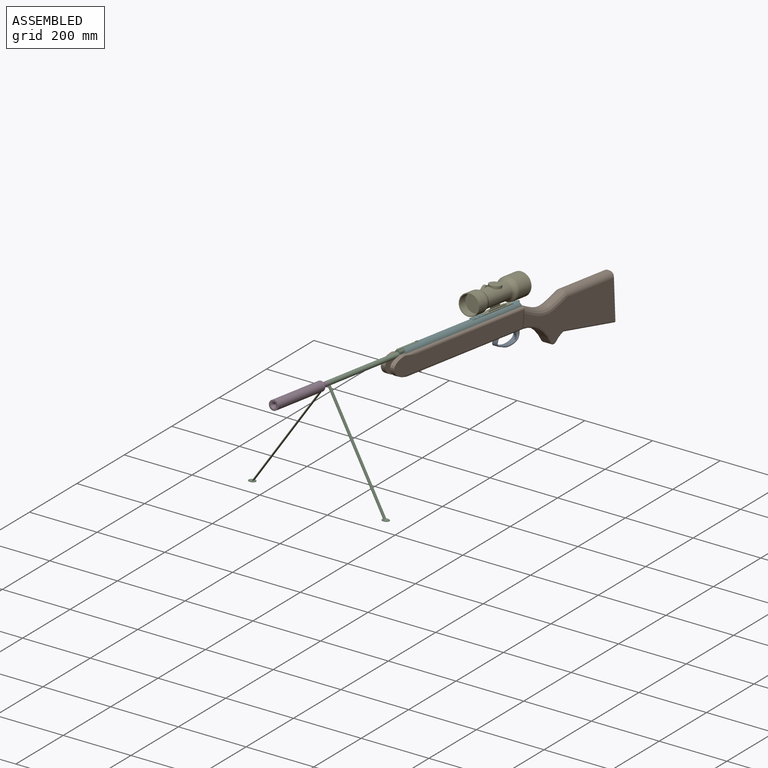
[diagram: assembled view]
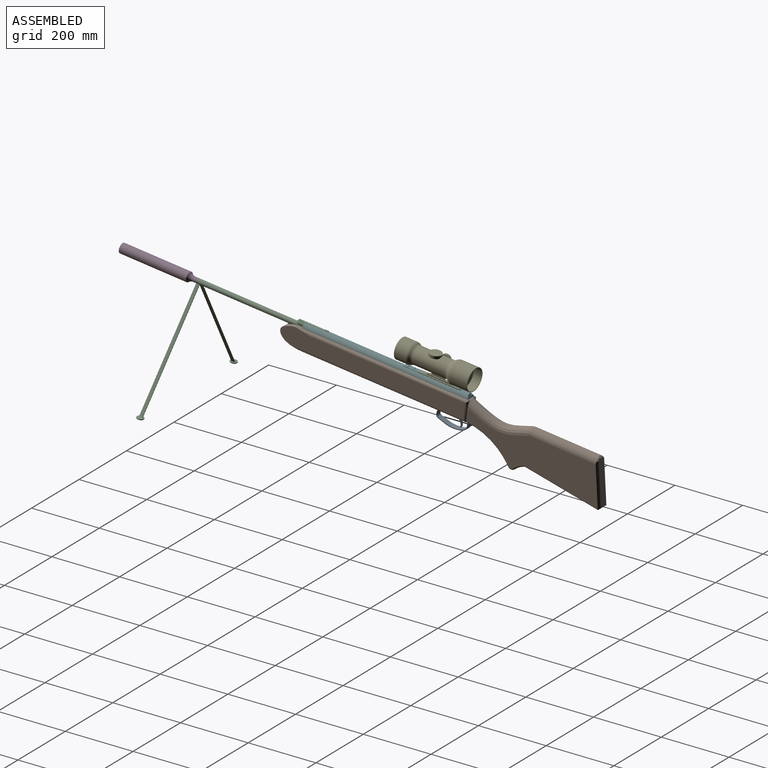
[diagram: assembled view, second angle]
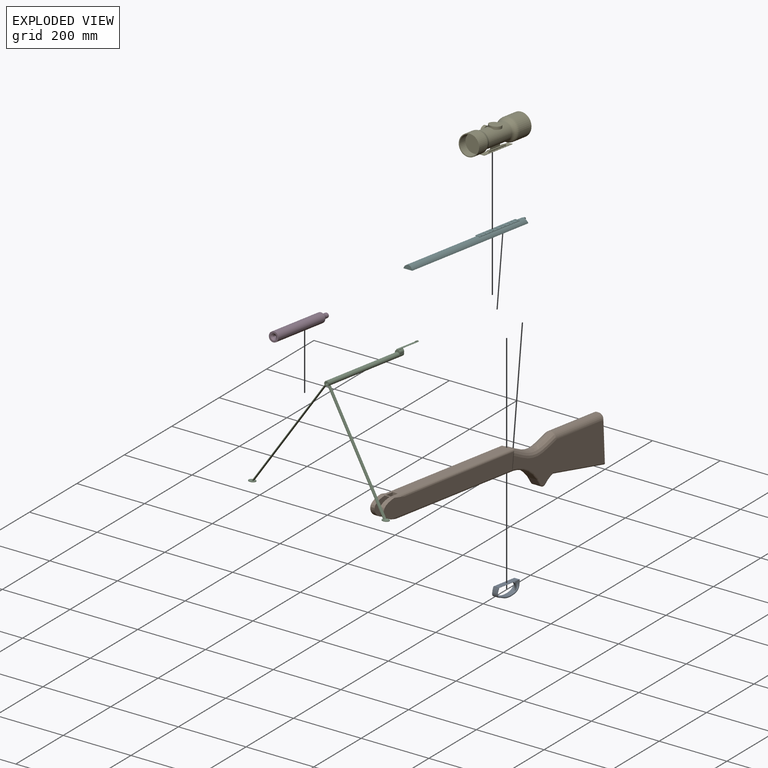
[diagram: exploded view]
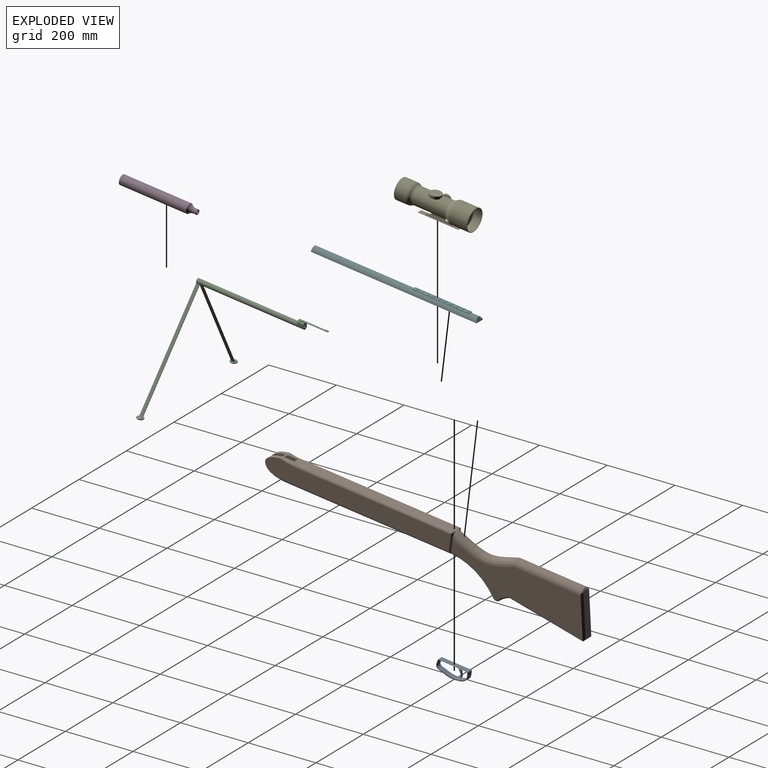
[diagram: exploded view, second angle]
ASSEMBLY  parts=6 mates=5
PART A: 22 faces, bbox 18.5x95x37.6 mm
  f0: plane 94.95x36.71mm, normal (-1,0,0), area 269.3mm2, adj f3,f4,f5,f6,f8,f10,f11
  f1: plane 94.95x36.71mm, normal (1,0,0), area 269.3mm2, adj f3,f4,f5,f6,f13,f15,f16
  f2: plane 82.13x14mm, normal (0,0,-1), area 1138.7mm2, adj f9,f12,f14,f17,f19,f20
  f3: extruded ~92.81x34.76mm, area 2222.7mm2, adj f0,f1,f4,f6
  f4: plane 16x1mm, normal (0,1,0), area 16mm2, adj f0,f1,f3,f5
  f5: plane 89.11x16mm, normal (0,0,1), area 1425.7mm2, adj f0,f1,f4,f6,f9,f17
  f6: plane 16x1mm, normal (0,-1,0), area 16mm2, adj f0,f1,f3,f5
  f7: extruded ~88.66x30.74mm, area 1805.1mm2, adj f8,f12,f13,f14
  f8: bspline ~90.76x33.22mm, area 204.7mm2, adj f0,f7,f10,f11
  f9: cylinder r=1mm len=82.13mm, axis (0,1,0), area 129mm2, adj f2,f5,f10,f11,f18
  f10: torus R=2mm, axis (1,0,0), area 3.1mm2, adj f0,f8,f9,f12
  f11: torus R=2mm, axis (1,0,0), area 2.6mm2, adj f0,f8,f9,f14
  f12: cylinder r=1mm len=14mm, axis (-1,0,0), area 20.1mm2, adj f2,f7,f10,f15
  f13: bspline ~90.76x33.22mm, area 204.7mm2, adj f1,f7,f15,f16
  f14: cylinder r=1mm len=14mm, axis (-1,0,0), area 16.8mm2, adj f2,f7,f11,f16
  f15: torus R=2mm, axis (1,0,0), area 3.1mm2, adj f1,f12,f13,f17
  f16: torus R=2mm, axis (1,0,0), area 2.6mm2, adj f1,f13,f14,f17
  f17: cylinder r=1mm len=82.13mm, axis (0,-1,0), area 129mm2, adj f2,f5,f15,f16
  f18: plane 7.41x3.5mm, normal (0,0,1), area 25.9mm2, adj f9,f19,f21
  f19: extruded ~22.21x11.03mm, area 248.6mm2, adj f2,f18,f20,f21
  f20: plane 22.49x11.46mm, normal (1,0,0), area 86mm2, adj f2,f19
  f21: plane 22.49x11.46mm, normal (-1,0,0), area 86mm2, adj f18,f19
PART B: 64 faces, bbox 45.2x968.6x148.4 mm
  f0: plane 479.88x26mm, normal (0,0,-1), area 7351.9mm2, adj f2,f47,f48,f49,f52,f55,f57
  f1: plane 515.2x31.2mm, normal (0,0,1), area 12719.7mm2, adj f2,f33,f34,f35,f36,f48,f49,f50
  f2: extruded ~87.26x60.21mm, area 3563.4mm2, adj f0,f1,f5,f6,f48,f49,f51,f54
  f3: plane 1.33x0.18mm, normal (0,1,0), area 0.1mm2, adj f29,f46,f47,f57
  f4: plane 1.32x0.18mm, normal (0,1,0), area 0.1mm2, adj f25,f45,f47,f55
  f5: plane 549.65x55.29mm, normal (1,0,0), area 25156.5mm2, adj f2,f15,f56,f57
  f6: plane 549.65x55.29mm, normal (-1,0,0), area 25156.5mm2, adj f2,f16,f54,f55
  f7: plane 1.27x1.01mm, normal (0,1,0), area 0.6mm2, adj f32,f36,f38
  f8: plane 1.27x1.01mm, normal (0,1,0), area 0.6mm2, adj f30,f35,f37
  f9: cylinder r=174.95mm len=132.48mm, axis (-1,0,0), area 3863.5mm2, adj f17,f25,f29,f47
  f10: cylinder r=70.7mm len=29.31mm, axis (-1,0,0), area 886.7mm2, adj f11,f17,f23,f27
  f11: plane 220.95x31.05mm, normal (0,-0.14,-0.99), area 5578mm2, adj f10,f21,f22,f26
  f12: plane 122.66x21.63mm, normal (0,0.98,0.17), area 2584.8mm2, adj f58,f59,f60,f61,f62,f63
  f13: plane 402.07x118.28mm, normal (1,0,0), area 29947.3mm2, adj f19,f26,f27,f28,f29,f31,f32,f42
  f14: plane 402.05x118.26mm, normal (-1,0,0), area 29947.3mm2, adj f20,f22,f23,f24,f25,f30,f31,f41
  f15: cylinder r=13.48mm len=51.77mm, axis (0,0,1), area 306.8mm2, adj f5,f38,f40,f42,f44,f56,f57
  f16: cylinder r=13.48mm len=51.77mm, axis (0,0,1), area 306.8mm2, adj f6,f37,f39,f41,f43,f54,f55
  f17: cylinder r=12mm len=25mm, axis (-1,0,0), area 527.2mm2, adj f9,f10,f24,f28
  f18: plane 16.97x5.84mm, normal (0,0.64,0.77), area 53.1mm2, adj f59,f61,f63
  f19: plane 127.95x26.23mm, normal (0.71,0.7,0.12), area 623mm2, adj f13,f21,f26,f31,f60,f62,f63
  f20: plane 127.95x26.23mm, normal (-0.71,0.7,0.12), area 623mm2, adj f14,f21,f22,f31,f58,f59,f60
  f21: plane 34.23x4.77mm, normal (0,0.72,-0.69), area 172.5mm2, adj f11,f19,f20,f22,f26,f60
  f22: cylinder r=5mm len=224.48mm, axis (0,0.99,-0.14), area 1763.6mm2, adj f11,f14,f20,f21,f23
  f23: torus R=75.7mm, axis (1,0,0), area 290.4mm2, adj f10,f14,f22,f24
  f24: torus R=7mm, axis (1,0,0), area 140.6mm2, adj f14,f17,f23,f25
  f25: torus R=179.95mm, axis (1,0,0), area 1228mm2, adj f4,f9,f14,f24,f43,f47
  f26: cylinder r=5mm len=224.48mm, axis (0,-0.99,0.14), area 1763.6mm2, adj f11,f13,f19,f21,f27
  f27: torus R=75.7mm, axis (1,0,0), area 290.4mm2, adj f10,f13,f26,f28
  f28: torus R=7mm, axis (1,0,0), area 140.6mm2, adj f13,f17,f27,f29
  f29: torus R=179.95mm, axis (1,0,0), area 1228mm2, adj f3,f9,f13,f28,f44,f47
  f30: bspline ~194.92x47mm, area 5194.5mm2, adj f8,f14,f31,f32,f33,f39
  f31: cylinder r=17.5mm len=201.46mm, axis (0,-1,0), area 10942.9mm2, adj f13,f14,f19,f20,f30,f32,f59,f63
  f32: bspline ~197.39x46.49mm, area 5194.6mm2, adj f7,f13,f30,f31,f34,f40
  f33: bspline ~13.21x6.23mm, area 38.8mm2, adj f1,f30,f35
  f34: bspline ~13.7x6.45mm, area 35.4mm2, adj f1,f32,f36
  f35: cylinder r=6mm len=6mm, axis (-1,0,0), area 27.5mm2, adj f1,f8,f33,f37,f54
  f36: cylinder r=6mm len=6mm, axis (-1,0,0), area 27.5mm2, adj f1,f7,f34,f38,f56
  f37: cylinder r=6mm len=5.8mm, axis (0,0,1), area 28.1mm2, adj f8,f16,f35,f39,f54
  f38: cylinder r=6mm len=5.8mm, axis (0,0,1), area 28.1mm2, adj f7,f15,f36,f40,f56
  f39: bspline ~13.78x6.77mm, area 46.5mm2, adj f16,f30,f37,f41
  f40: bspline ~12.39x6.12mm, area 46.5mm2, adj f15,f32,f38,f42
  f41: cylinder r=6mm len=36.18mm, axis (0,0,-1), area 8mm2, adj f14,f16,f39,f43
  f42: cylinder r=6mm len=36.18mm, axis (0,0,-1), area 8mm2, adj f13,f15,f40,f44
  f43: bspline ~5.85x5.04mm, area 9.5mm2, adj f16,f25,f41,f45,f55
  f44: bspline ~5.85x5.04mm, area 9.5mm2, adj f15,f29,f42,f46,f57
  f45: cylinder r=6mm len=0.75mm, axis (0,0,1), area 0mm2, adj f4,f43,f55
  f46: cylinder r=6mm len=0.75mm, axis (0,0,1), area 0mm2, adj f3,f44,f57
  f47: cylinder r=6mm len=26mm, axis (-1,0,0), area 6.3mm2, adj f0,f3,f4,f9,f25,f29,f55,f57
  f48: plane 426.24x60.89mm, normal (-1,0,0), area 12353.5mm2, adj f0,f1,f2,f50,f51,f52,f53
  f49: plane 426.24x60.89mm, normal (1,0,0), area 12353.5mm2, adj f0,f1,f2,f50,f51,f52,f53
  f50: plane 35x14.64mm, normal (0,-1,0), area 512.5mm2, adj f1,f48,f49,f53
  f51: plane 14.64x5.17mm, normal (0,0,-1), area 75.7mm2, adj f2,f48,f49
  f52: plane 25x14.64mm, normal (0,-1,0), area 366.1mm2, adj f0,f48,f49,f53
  f53: plane 349.96x14.64mm, normal (0,0,-1), area 5125mm2, adj f48,f49,f50,f52
  f54: cylinder r=7mm len=508.44mm, axis (0,-1,0), area 5393.4mm2, adj f1,f2,f6,f16,f35,f37
  f55: cylinder r=7mm len=521.58mm, axis (0,1,0), area 5447.1mm2, adj f0,f2,f4,f6,f16,f43,f45,f47
  f56: cylinder r=7mm len=508.44mm, axis (0,1,0), area 5393.4mm2, adj f1,f2,f5,f15,f36,f38
  f57: cylinder r=7mm len=521.58mm, axis (0,-1,0), area 5447.1mm2, adj f0,f2,f3,f5,f15,f44,f46,f47
  f58: cylinder r=5mm len=123.55mm, axis (0,-0.17,0.98), area 482.8mm2, adj f12,f20,f59,f60
  f59: bspline ~17.41x15.77mm, area 88.5mm2, adj f12,f18,f20,f31,f58,f61
  f60: cylinder r=5mm len=29.12mm, axis (1,0,0), area 118.2mm2, adj f12,f19,f20,f21,f58,f62
  f61: cylinder r=5mm len=14.6mm, axis (1,0,0), area 48mm2, adj f12,f18,f59,f63
  f62: cylinder r=5mm len=123.55mm, axis (0,-0.17,0.98), area 482.8mm2, adj f12,f19,f60,f63
  f63: bspline ~17.41x15.77mm, area 88.5mm2, adj f12,f18,f19,f31,f61,f62
PART C: 58 faces, bbox 414.3x391.7x317.5 mm
  f0: plane 86x4.58mm, normal (0,0,1), area 361.5mm2, adj f26,f27,f28,f30,f33,f35,f37,f39
  f1: plane 19.16x0.26mm, normal (0,0,1), area 0.3mm2, adj f8,f20,f23,f30,f31
  f2: cylinder r=3mm len=320mm, axis (0,-1,0), area 6031.9mm2, adj f14,f18
  f3: plane 19.15x0.12mm, normal (0,0,-1), area 2.3mm2, adj f7,f10,f13,f23
  f4: plane 3.06x0.01mm, normal (0,0,-1), area 0mm2, adj f6,f8,f11,f13
  f5: plane 3.06x0.01mm, normal (0,0,-1), area 0mm2, adj f7,f8,f12,f13
  f6: plane 4.5x3.06mm, normal (0,-1,0), area 5.2mm2, adj f4,f9,f13,f15
  f7: plane 4.5x3.06mm, normal (0,-1,0), area 5.2mm2, adj f3,f5,f10,f13
  f8: plane 14x7.5mm, normal (0,-1,0), area 77mm2, adj f1,f4,f5,f11,f12,f13,f20,f21
  f9: plane 19.15x4.5mm, normal (1,0,0), area 86.2mm2, adj f6,f11,f15,f23
  f10: plane 19.15x4.5mm, normal (-1,0,0), area 86.2mm2, adj f3,f7,f12,f23
  f11: cylinder r=7.56mm len=19.16mm, axis (0,-1,0), area 149.9mm2, adj f4,f8,f9,f21,f23
  f12: cylinder r=7.56mm len=19.16mm, axis (0,-1,0), area 149.9mm2, adj f5,f8,f10,f20,f23
  f13: cylinder r=7mm len=320mm, axis (0,1,0), area 13666mm2, adj f3,f4,f5,f6,f7,f8,f14,f15
  f14: plane 394.25x306.95mm, normal (0,-1,0), area 1521.9mm2, adj f2,f13,f40,f41,f43,f44,f48,f49
  f15: plane 19.15x0.12mm, normal (0,0,-1), area 2.3mm2, adj f6,f9,f13,f23
  f16: plane 2.05x0.85mm, normal (0,0,1), area 1.7mm2, adj f13,f18,f19,f23
  f17: plane 2.05x0.85mm, normal (0,0,1), area 1.7mm2, adj f13,f18,f19,f23
  f18: plane 14x12mm, normal (0,1,0), area 93.1mm2, adj f2,f13,f16,f17,f19
  f19: cylinder r=5mm len=9.66mm, axis (0,1,0), area 11.1mm2, adj f16,f17,f18,f23
  f20: plane 19.16x1mm, normal (-1,0,0), area 19.2mm2, adj f1,f8,f12,f23
  f21: plane 19.16x1mm, normal (1,0,0), area 19.2mm2, adj f8,f11,f22,f23
  f22: plane 19.16x0.26mm, normal (0,0,1), area 0.3mm2, adj f8,f21,f23,f28,f29
  f23: plane 14x12mm, normal (0,1,0), area 120mm2, adj f1,f3,f9,f10,f11,f12,f15,f16
  f24: plane 67.5x6.58mm, normal (0,0,-1), area 444.1mm2, adj f23,f26,f28,f30
  f25: plane 6.08x0.34mm, normal (0,0,-1), area 1.9mm2, adj f8,f27,f29,f31
  f26: plane 6.58x2.3mm, normal (0,1,0), area 9.5mm2, adj f0,f24,f28,f30,f32,f33,f34,f36
  f27: cylinder r=1mm len=4.58mm, axis (1,0,0), area 7.2mm2, adj f0,f25,f29,f31
  f28: cylinder r=1mm len=86mm, axis (0,-1,0), area 135.1mm2, adj f0,f22,f24,f26,f29,f32
  f29: sphere r=1mm, area 1.6mm2, adj f22,f25,f27,f28
  f30: cylinder r=1mm len=86mm, axis (0,1,0), area 135.1mm2, adj f0,f1,f24,f26,f31,f38
  f31: sphere r=1mm, area 1.6mm2, adj f1,f25,f27,f30
  f32: plane 10x1.3mm, normal (0.91,0,0.42), area 14.3mm2, adj f26,f28,f34,f35
  f33: plane 10x1.3mm, normal (-1,0,0), area 13mm2, adj f0,f26,f34,f35
  f34: plane 10x1.01mm, normal (0,0,1), area 10.1mm2, adj f26,f32,f33,f35
  f35: plane 1.61x1.3mm, normal (0,-1,0), area 1.7mm2, adj f0,f32,f33,f34
  f36: plane 10x1.01mm, normal (0,0,1), area 10.1mm2, adj f26,f37,f38,f39
  f37: plane 10x1.3mm, normal (1,0,0), area 13mm2, adj f0,f26,f36,f39
  f38: plane 10x1.3mm, normal (-0.91,0,0.42), area 14.3mm2, adj f26,f30,f36,f39
  f39: plane 1.61x1.3mm, normal (0,-1,0), area 1.7mm2, adj f0,f36,f37,f38
  f40: plane 10x2.79mm, normal (-0.23,0,0.97), area 28.6mm2, adj f14,f42,f48,f53
  f41: plane 294.3x189.44mm, normal (0.84,0,-0.54), area 3500mm2, adj f13,f14,f42,f48
  f42: plane 295.49x192.99mm, normal (0,1,0), area 698.1mm2, adj f13,f40,f41,f48,f52,f53,f54
  f43: plane 294.3x189.44mm, normal (-0.84,0,-0.54), area 3500mm2, adj f13,f14,f45,f49
  f44: plane 10x2.79mm, normal (0.23,0,0.97), area 28.6mm2, adj f14,f45,f49,f55
  f45: plane 295.49x192.99mm, normal (0,1,0), area 698.1mm2, adj f13,f43,f44,f49,f55,f56,f57
  f46: cylinder r=10mm len=20mm, axis (0,0,1), area 125.7mm2, adj f47,f48
  f47: plane 20x20mm, normal (0,0,-1), area 314.2mm2, adj f46
  f48: plane 20x20mm, normal (0,0,1), area 278.7mm2, adj f14,f40,f41,f42,f46
  f49: plane 20x20mm, normal (0,0,1), area 278.7mm2, adj f14,f43,f44,f45,f50
  f50: cylinder r=10mm len=20mm, axis (0,0,1), area 125.7mm2, adj f49,f51
  f51: plane 20x20mm, normal (0,0,-1), area 314.2mm2, adj f50
  f52: plane 10x0.84mm, normal (0.54,0,0.84), area 10mm2, adj f13,f14,f42,f54
  f53: plane 10x0.84mm, normal (-0.54,0,-0.84), area 10mm2, adj f14,f40,f42,f54
  f54: plane 294.3x189.44mm, normal (-0.84,0,0.54), area 3500mm2, adj f14,f42,f52,f53
  f55: plane 10x0.84mm, normal (0.54,0,-0.84), area 10mm2, adj f14,f44,f45,f57
  f56: plane 10x0.84mm, normal (-0.54,0,0.84), area 10mm2, adj f13,f14,f45,f57
  f57: plane 294.3x189.44mm, normal (0.84,0,0.54), area 3500mm2, adj f14,f45,f55,f56
PART D: 7 faces, bbox 58.4x229.4x58.4 mm
  f0: cylinder r=7mm len=14mm, axis (0,1,0), area 431.1mm2, adj f1,f3
  f1: plane 14x14mm, normal (0,1,0), area 103.7mm2, adj f0,f4
  f2: cylinder r=14mm len=200mm, axis (0,1,0), area 17592.9mm2, adj f3,f5
  f3: torus R=27mm, axis (0,-1,0), area 1018.9mm2, adj f0,f2
  f4: cylinder r=4mm len=220mm, axis (0,-1,0), area 5529.2mm2, adj f1,f6
  f5: plane 28x28mm, normal (0,-1,0), area 361.3mm2, adj f2,f6
  f6: cone r=4mm half-angle=45deg, axis (0,-1,0), area 288.8mm2, adj f4,f5
PART E: 43 faces, bbox 70.4x219x74.8 mm
  f0: cylinder r=25mm len=95.83mm, axis (0,-1,0), area 14220.9mm2, adj f1,f4,f6,f7,f25,f29,f31,f39
  f1: cylinder r=3.88mm len=7.76mm, axis (-1,0,0), area 54.2mm2, adj f0,f37
  f2: plane 13.82x0.66mm, normal (0,0,1), area 9.2mm2, adj f6,f7,f23,f31
  f3: cylinder r=32.5mm len=65mm, axis (0,1,0), area 10648.7mm2, adj f5,f26
  f4: torus R=40mm, axis (0,-1,0), area 1789.6mm2, adj f0,f5
  f5: torus R=17.5mm, axis (0,1,0), area 2127.1mm2, adj f3,f4
  f6: plane 80x10.52mm, normal (1,0,0), area 445.6mm2, adj f0,f2,f8,f9,f10,f20,f21,f22
  f7: plane 80x10.52mm, normal (-1,0,0), area 445.6mm2, adj f0,f2,f8,f9,f17,f20,f21,f22
  f8: cylinder r=9.6mm len=7mm, axis (-1,0,0), area 51.4mm2, adj f6,f7,f10,f11,f17,f18,f19,f20
  f9: cylinder r=9.6mm len=7mm, axis (-1,0,0), area 51.4mm2, adj f6,f7,f10,f11,f17,f18,f19,f22
  f10: plane 70x3.17mm, normal (0,0,1), area 221.7mm2, adj f6,f8,f9,f18
  f11: plane 120x14mm, normal (0,0,1), area 1102.2mm2, adj f8,f9,f12,f14,f15,f16,f18,f19
  f12: plane 14x1mm, normal (0,-1,0), area 14mm2, adj f11,f13,f15,f16
  f13: plane 120x14mm, normal (0,0,-1), area 1680mm2, adj f12,f14,f15,f16
  f14: plane 14x1mm, normal (0,1,0), area 14mm2, adj f11,f13,f15,f16
  f15: plane 120x1mm, normal (1,0,0), area 120mm2, adj f11,f12,f13,f14
  f16: plane 120x1mm, normal (-1,0,0), area 120mm2, adj f11,f12,f13,f14
  f17: plane 70x3.17mm, normal (0,0,1), area 221.7mm2, adj f7,f8,f9,f19
  f18: plane 82.55x3.58mm, normal (1,0,0), area 265.8mm2, adj f8,f9,f10,f11
  f19: plane 82.55x3.58mm, normal (-1,0,0), area 265.8mm2, adj f8,f9,f11,f17
  f20: plane 4.56x0.66mm, normal (0,0,-1), area 3mm2, adj f6,f7,f8,f24
  f21: plane 24.08x0.66mm, normal (0,0,1), area 16mm2, adj f6,f7,f24,f25
  f22: plane 4.56x0.66mm, normal (0,0,-1), area 3mm2, adj f6,f7,f9,f23
  f23: plane 1.03x0.66mm, normal (0,1,0), area 0.7mm2, adj f2,f6,f7,f22
  f24: plane 1.03x0.66mm, normal (0,-1,0), area 0.7mm2, adj f6,f7,f20,f21
  f25: plane 9.49x0.66mm, normal (0,-1,0), area 6.3mm2, adj f0,f6,f7,f21
  f26: plane 65x65mm, normal (0,-1,0), area 299.2mm2, adj f3,f34
  f27: cylinder r=30mm len=60mm, axis (0,-1,0), area 6521.4mm2, adj f28,f30
  f28: plane 60x60mm, normal (0,1,0), area 451.6mm2, adj f27,f32
  f29: torus R=40mm, axis (0,1,0), area 1426.5mm2, adj f0,f30
  f30: torus R=15mm, axis (0,-1,0), area 1609.5mm2, adj f27,f29
  f31: plane 9.49x0.66mm, normal (0,1,0), area 6.3mm2, adj f0,f2,f6,f7
  f32: cylinder r=27.5mm len=55mm, axis (0,1,0), area 4319.7mm2, adj f28,f33
  f33: plane 55x55mm, normal (0,1,0), area 2375.8mm2, adj f32
  f34: cylinder r=31mm len=62mm, axis (0,-1,0), area 4869.5mm2, adj f26,f35
  f35: plane 62x62mm, normal (0,-1,0), area 3019.1mm2, adj f34
  f36: cylinder r=14mm len=28mm, axis (1,0,0), area 703.7mm2, adj f37,f38
  f37: plane 28x28mm, normal (-1,0,0), area 568.5mm2, adj f1,f36
  f38: plane 28x28mm, normal (1,0,0), area 615.8mm2, adj f36
  f39: cylinder r=17.5mm len=35mm, axis (0,0,1), area 772.8mm2, adj f0,f40,f41,f42
  f40: plane 31.38x9.75mm, normal (0,0,-1), area 218.9mm2, adj f0,f39
  f41: plane 14.19x1.5mm, normal (0,0,-1), area 14.3mm2, adj f0,f39
  f42: plane 35x35mm, normal (0,0,1), area 962.1mm2, adj f39
PART F: 73 faces, bbox 26x497.7x14 mm
  f0: cylinder r=16.5mm len=24.53mm, axis (-1,0,0), area 176.3mm2, adj f3,f5,f7,f8,f68,f69,f71,f72
  f1: plane 170x14mm, normal (0,0,1), area 2020mm2, adj f9,f10,f12,f14,f17,f18,f19,f20
  f2: plane 25x4mm, normal (0,0,1), area 100mm2, adj f3,f5,f7,f9
  f3: cylinder r=16.05mm len=493mm, axis (0,1,0), area 7782.5mm2, adj f0,f2,f4,f6,f7,f8,f9,f10
  f4: plane 493x26mm, normal (0,0,-1), area 12818mm2, adj f3,f5,f8,f67
  f5: cylinder r=16.05mm len=493mm, axis (0,1,0), area 7782.5mm2, adj f0,f2,f4,f6,f7,f8,f9,f10
  f6: plane 295x4mm, normal (0,0,1), area 1180mm2, adj f3,f5,f10,f67
  f7: plane 4.32x0.05mm, normal (0,1,0), area 0.2mm2, adj f0,f2,f3,f5
  f8: plane 26x2.46mm, normal (0,1,0), area 62.4mm2, adj f0,f3,f4,f5
  f9: plane 14x2.4mm, normal (0,1,0), area 18.6mm2, adj f1,f2,f3,f5,f11,f12,f13,f14
  f10: plane 14x2.4mm, normal (0,-1,0), area 18.6mm2, adj f1,f3,f5,f6,f11,f12,f13,f14
  f11: plane 170x1.39mm, normal (0,0,-1), area 236mm2, adj f9,f10,f12,f16
  f12: plane 170x1mm, normal (-1,0,0), area 170mm2, adj f1,f9,f10,f11
  f13: plane 170x1.39mm, normal (0,0,-1), area 236mm2, adj f9,f10,f14,f15
  f14: plane 170x1mm, normal (1,0,0), area 170mm2, adj f1,f9,f10,f13
  f15: plane 170x1.4mm, normal (0.97,0,-0.26), area 245.9mm2, adj f5,f9,f10,f13
  f16: plane 170x1.4mm, normal (-0.97,0,-0.26), area 245.9mm2, adj f3,f9,f10,f11
  f17: plane 9x1mm, normal (0,-1,0), area 9mm2, adj f1,f18,f20,f21
  f18: plane 3x1mm, normal (1,0,0), area 3mm2, adj f1,f17,f19,f21
  f19: plane 9x1mm, normal (0,1,0), area 9mm2, adj f1,f18,f20,f21
  f20: plane 3x1mm, normal (-1,0,0), area 3mm2, adj f1,f17,f19,f21
  f21: plane 9x3mm, normal (0,0,1), area 27mm2, adj f17,f18,f19,f20
  f22: plane 9x1mm, normal (0,-1,0), area 9mm2, adj f1,f23,f25,f26
  f23: plane 3x1mm, normal (1,0,0), area 3mm2, adj f1,f22,f24,f26
  f24: plane 9x1mm, normal (0,1,0), area 9mm2, adj f1,f23,f25,f26
  f25: plane 3x1mm, normal (-1,0,0), area 3mm2, adj f1,f22,f24,f26
  f26: plane 9x3mm, normal (0,0,1), area 27mm2, adj f22,f23,f24,f25
  f27: plane 9x1mm, normal (0,-1,0), area 9mm2, adj f1,f28,f30,f31
  f28: plane 3x1mm, normal (1,0,0), area 3mm2, adj f1,f27,f29,f31
  f29: plane 9x1mm, normal (0,1,0), area 9mm2, adj f1,f28,f30,f31
  f30: plane 3x1mm, normal (-1,0,0), area 3mm2, adj f1,f27,f29,f31
  f31: plane 9x3mm, normal (0,0,1), area 27mm2, adj f27,f28,f29,f30
  f32: plane 8x1mm, normal (1,0,0), area 8mm2, adj f1,f33,f35,f65
  f33: plane 9x1mm, normal (0,1,0), area 9mm2, adj f1,f32,f34,f35
  f34: plane 8x1mm, normal (-1,0,0), area 8mm2, adj f1,f33,f35,f65
  f35: plane 9x8mm, normal (0,0,1), area 72mm2, adj f32,f33,f34,f65
  f36: plane 9x1mm, normal (0,-1,0), area 9mm2, adj f1,f37,f39,f40
  f37: plane 3x1mm, normal (1,0,0), area 3mm2, adj f1,f36,f38,f40
  f38: plane 9x1mm, normal (0,1,0), area 9mm2, adj f1,f37,f39,f40
  f39: plane 3x1mm, normal (-1,0,0), area 3mm2, adj f1,f36,f38,f40
  f40: plane 9x3mm, normal (0,0,1), area 27mm2, adj f36,f37,f38,f39
  f41: plane 9x1mm, normal (0,-1,0), area 9mm2, adj f1,f42,f44,f45
  f42: plane 3x1mm, normal (1,0,0), area 3mm2, adj f1,f41,f43,f45
  f43: plane 9x1mm, normal (0,1,0), area 9mm2, adj f1,f42,f44,f45
  f44: plane 3x1mm, normal (-1,0,0), area 3mm2, adj f1,f41,f43,f45
  f45: plane 9x3mm, normal (0,0,1), area 27mm2, adj f41,f42,f43,f44
  f46: plane 8x1mm, normal (1,0,0), area 8mm2, adj f1,f47,f49,f66
  f47: plane 9x1mm, normal (0,1,0), area 9mm2, adj f1,f46,f48,f49
  f48: plane 8x1mm, normal (-1,0,0), area 8mm2, adj f1,f47,f49,f66
  f49: plane 9x8mm, normal (0,0,1), area 72mm2, adj f46,f47,f48,f66
  f50: plane 9x1mm, normal (0,-1,0), area 9mm2, adj f1,f51,f53,f54
  f51: plane 3x1mm, normal (1,0,0), area 3mm2, adj f1,f50,f52,f54
  f52: plane 9x1mm, normal (0,1,0), area 9mm2, adj f1,f51,f53,f54
  f53: plane 3x1mm, normal (-1,0,0), area 3mm2, adj f1,f50,f52,f54
  f54: plane 9x3mm, normal (0,0,1), area 27mm2, adj f50,f51,f52,f53
  f55: plane 9x1mm, normal (0,-1,0), area 9mm2, adj f1,f56,f58,f59
  f56: plane 3x1mm, normal (1,0,0), area 3mm2, adj f1,f55,f57,f59
  f57: plane 9x1mm, normal (0,1,0), area 9mm2, adj f1,f56,f58,f59
  f58: plane 3x1mm, normal (-1,0,0), area 3mm2, adj f1,f55,f57,f59
  f59: plane 9x3mm, normal (0,0,1), area 27mm2, adj f55,f56,f57,f58
  f60: plane 9x1mm, normal (0,-1,0), area 9mm2, adj f1,f61,f63,f64
  f61: plane 3x1mm, normal (1,0,0), area 3mm2, adj f1,f60,f62,f64
  f62: plane 9x1mm, normal (0,1,0), area 9mm2, adj f1,f61,f63,f64
  f63: plane 3x1mm, normal (-1,0,0), area 3mm2, adj f1,f60,f62,f64
  f64: plane 9x3mm, normal (0,0,1), area 27mm2, adj f60,f61,f62,f63
  f65: plane 9x1mm, normal (0,-1,0), area 9mm2, adj f1,f32,f34,f35
  f66: plane 9x1mm, normal (0,-1,0), area 9mm2, adj f1,f46,f48,f49
  f67: plane 26x12mm, normal (0,-1,0), area 228.8mm2, adj f3,f4,f5,f6
  f68: plane 7.2x6.51mm, normal (-1,0,0), area 34mm2, adj f0,f70,f71,f72
  f69: plane 7.2x6.51mm, normal (1,0,0), area 34mm2, adj f0,f70,f71,f72
  f70: cylinder r=3.26mm len=6.51mm, axis (-1,0,0), area 78.2mm2, adj f68,f69,f71,f72
  f71: plane 4x0.7mm, normal (0,-0.48,0.88), area 3.2mm2, adj f0,f68,f69,f70
  f72: plane 4x0.68mm, normal (0,0.48,-0.88), area 3.1mm2, adj f0,f68,f69,f70
PLACE A rot(axis=(0,0.06,1),180deg) t=(-341.05,-168.18,-142.02)mm
PLACE B rot(axis=(-1,0,0),7deg) t=(-349.05,123.85,-260.45)mm
PLACE C rot(axis=(-1,0,0),7deg) t=(-356.05,-692.87,-47.11)mm
PLACE D rot(axis=(-1,0,0),7deg) t=(-349.05,-933.34,12.1)mm
PLACE E rot(axis=(0,0.06,1),180deg) t=(-349.05,-218.36,-60.8)mm
PLACE F rot(axis=(-1,0,0),7deg) t=(-349.05,-130.06,-85.24)mm
MATE fastened A.f5 <-> B.f0  axis (0,0.12,0.99) through (-349.05,-129.55,-145.75)mm
MATE fastened E.f13 <-> F.f1  axis (0,-0.12,-0.99) through (-349.05,-158.87,-68.6)mm
MATE fastened D.f0 <-> C.f2  axis (0,0.99,-0.12) through (-349.05,-933.34,12.1)mm
MATE fastened F.f4 <-> B.f1  axis (0,-0.12,-0.99) through (-349.05,-127.08,-85.61)mm
MATE fastened C.f10 <-> F.f12  axis (-1,0,0) through (-356.05,-616.41,-25.52)mm
